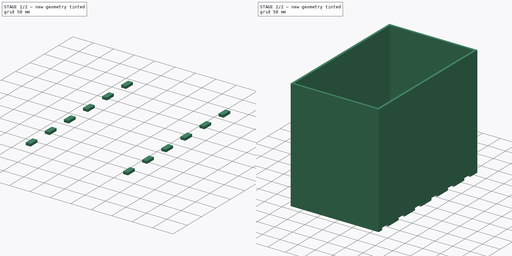
[diagram: build sequence overview — one tinted view per stage of 2, left to right]
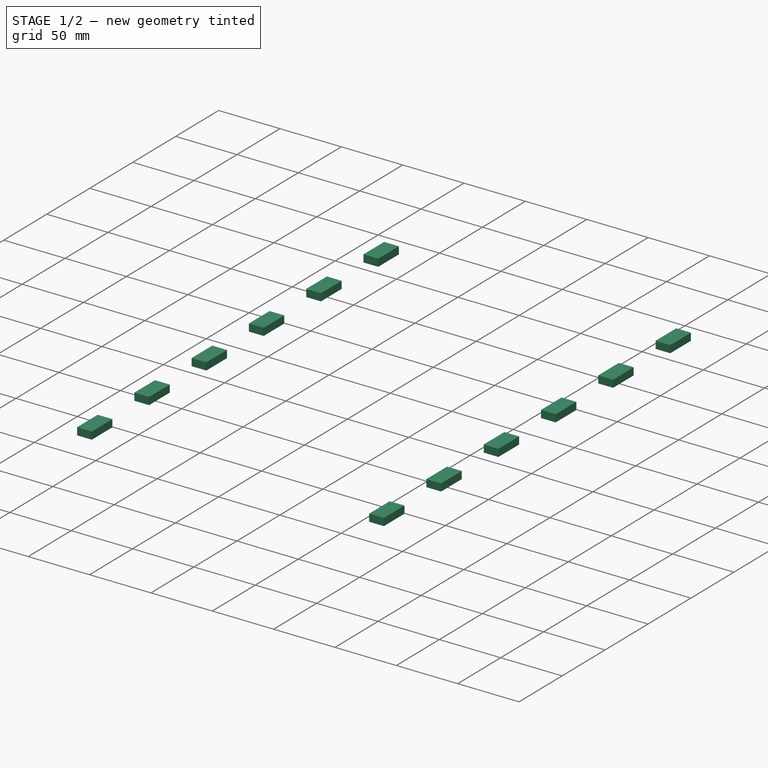
[diagram: stage 1 of 2 — iso view after this stage's code; geometry added in this stage tinted green]
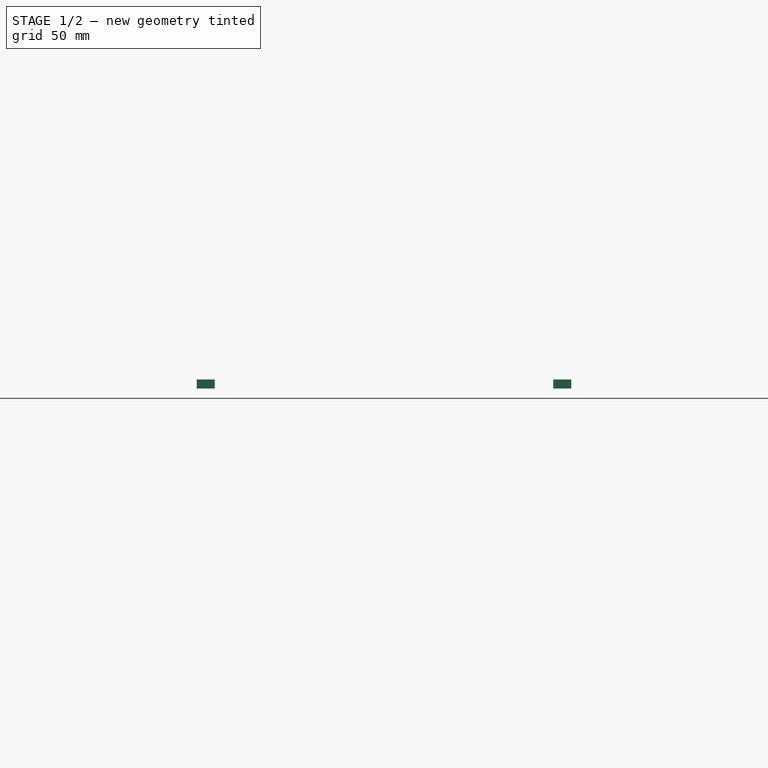
[diagram: stage 1 of 2 — front view after this stage's code; geometry added in this stage tinted green]
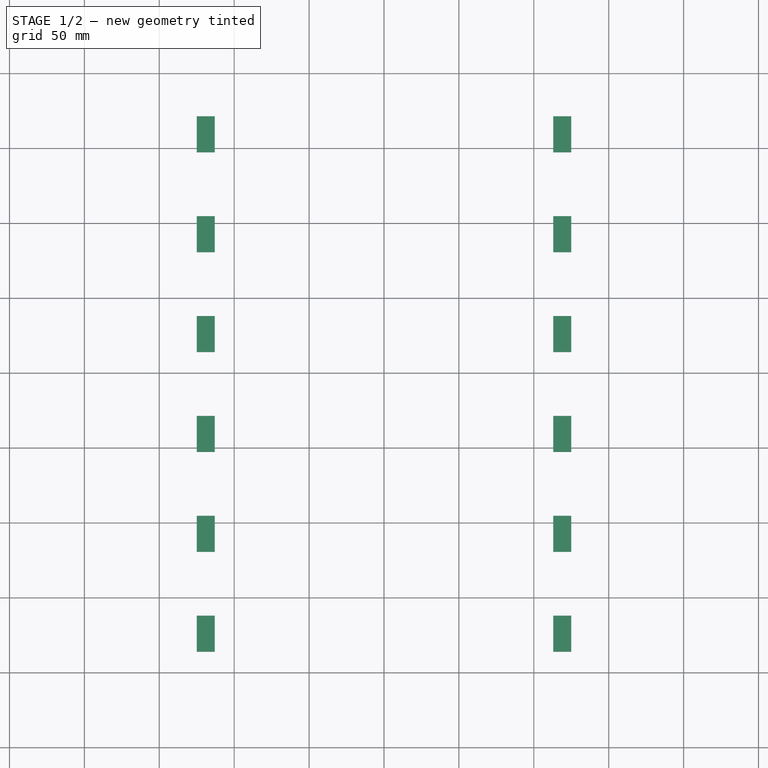
[diagram: stage 1 of 2 — top view after this stage's code; geometry added in this stage tinted green]
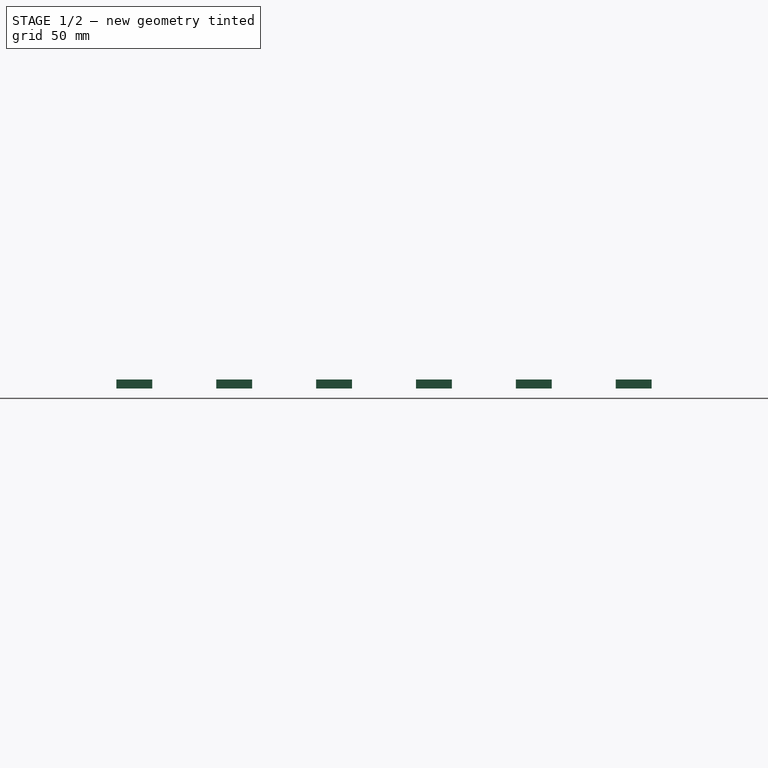
[diagram: stage 1 of 2 — right view after this stage's code; geometry added in this stage tinted green]
FCSTD DOCUMENT  (FreeCAD 0.16RUnknown)
Label: akpCupboard
License: All rights reserved
LicenseURL: http://en.wikipedia.org/wiki/All_rights_reserved
objects: Sketcher::SketchObject×3, PartDesign::Pad×2, Spreadsheet::Sheet×1, Part::FeaturePython×1, Part::Cut×1
note: 9 computed .brp shape members not serialized (recipe doc carries the construction recipe); baked Part::Feature solids carry a one-line shape summary decoded from their .brp

FEATURE [Sketcher::SketchObject] Sketch003
  Placement = pos=(0,0,0) rot=(1,0,0;3.14159rad)
  Support = -> Pad [Face9]
  expr: Constraints[10] = Spreadsheet.he - 2 * Spreadsheet.th
  expr: Constraints[9] = Spreadsheet.wi - 2 * Spreadsheet.th
  sketch-geometry (4):
    g0: LineSegment StartX=-119 StartY=194 StartZ=0 EndX=119 EndY=194 EndZ=0
    g1: LineSegment StartX=119 StartY=194 StartZ=0 EndX=119 EndY=-194 EndZ=0
    g2: LineSegment StartX=119 StartY=-194 StartZ=0 EndX=-119 EndY=-194 EndZ=0
    g3: LineSegment StartX=-119 StartY=-194 StartZ=0 EndX=-119 EndY=194 EndZ=0
  constraints (11):
    c: Coincident(g0,g1)
    c: Coincident(g1,g2)
    c: Coincident(g2,g3)
    c: Coincident(g3,g0)
    c: Horizontal(g0)
    c: Horizontal(g2)
    c: Vertical(g3)
    c: Symmetric(g0,g0,g-2)
    c: Symmetric(g1,g0,g-1)
    c: DistanceX(g0,g0) = 238
    c: DistanceY(g1,g1) = 388
FEATURE [Spreadsheet::Sheet] Spreadsheet
  cells = A1=Width; B1(wi)==1 * 250; A2=Height; B2(he)==1 * 400; A3=Thickness; B3(th)==1 * 6
FEATURE [Sketcher::SketchObject] Sketch004
  Placement = pos=(0,0,0) rot=(1,0,0;3.14159rad)
  expr: Constraints[13] = (Spreadsheet.wi - 2 * Spreadsheet.th) / 2
  expr: Constraints[11] = Spreadsheet.th * 4
  expr: Constraints[10] = Spreadsheet.th * 2
  sketch-geometry (5):
    g0: LineSegment StartX=113 StartY=186.001 StartZ=0 EndX=125 EndY=186.001 EndZ=0
    g1: LineSegment StartX=125 StartY=186.001 StartZ=0 EndX=125 EndY=162.001 EndZ=0
    g2: LineSegment StartX=125 StartY=162.001 StartZ=0 EndX=113 EndY=162.001 EndZ=0
    g3: LineSegment StartX=113 StartY=162.001 StartZ=0 EndX=113 EndY=186.001 EndZ=0
    g4: LineSegment [constr] StartX=119 StartY=186.001 StartZ=0 EndX=119 EndY=110.701 EndZ=0
  constraints (14):
    c: Coincident(g0,g1)
    c: Coincident(g1,g2)
    c: Coincident(g2,g3)
    c: Coincident(g3,g0)
    c: Horizontal(g0)
    c: Horizontal(g2)
    c: Vertical(g1)
    c: Vertical(g3)
    c: Vertical(g4)
    c: Symmetric(g0,g0,g4)
    c: DistanceX(g0,g0) = 12
    c: DistanceY(g1,g1) = 24
    c: Perpendicular(g4,g0) = 1.5708
    c: DistanceX(g-1,g4) = 119
FEATURE [PartDesign::Pad] Pad001
  Length = 6
  Length2 = 100
  Placement = pos=(0,0,0) rot=(1,0,0;3.14159rad)
  Reversed = true
  Sketch = -> Sketch004
  Type = 0
  expr: Length = Spreadsheet.th
FEATURE [Part::FeaturePython] Array  # Draft array (typed FeaturePython)
  Angle = 360
  ArrayType = 0
  Axis = (0,0,1)
  Base = -> Pad001
  Center = (0,0,0)
  Fuse = false
  IntervalAxis = (0,0,0)
  IntervalX = (-238,0,0)
  IntervalY = (0,66.6667,0)
  IntervalZ = (0,0,0)
  NumberPolar = 1
  NumberX = 2
  NumberY = 6
  NumberZ = 1
  expr: NumberY = Spreadsheet.he / Spreadsheet.th / 10 - 1
  expr: IntervalY.y = Spreadsheet.he / Spreadsheet.th
  expr: IntervalX.x = -Spreadsheet.wi + 2 * Spreadsheet.th
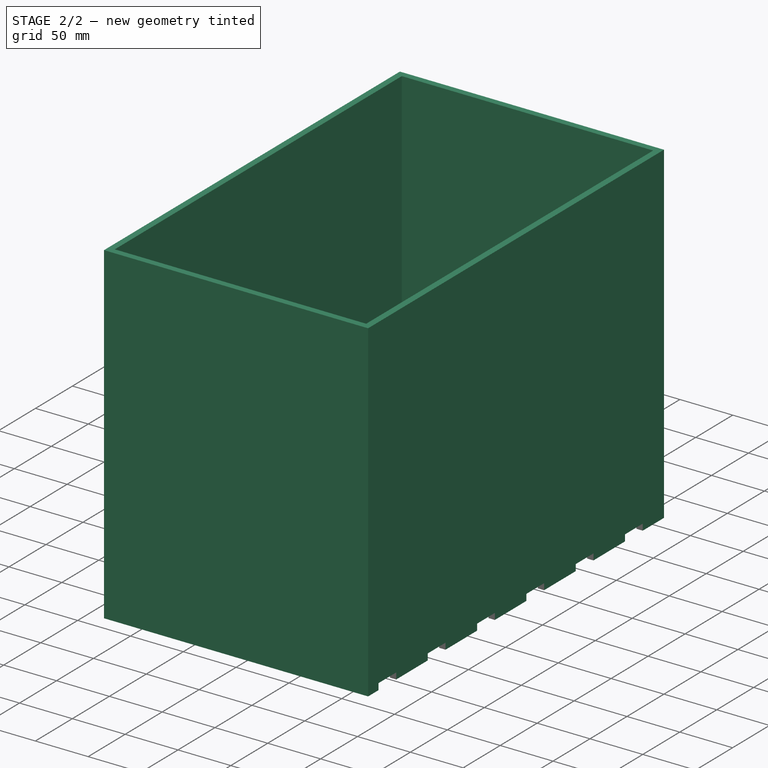
[diagram: stage 2 of 2 — iso view after this stage's code; geometry added in this stage tinted green]
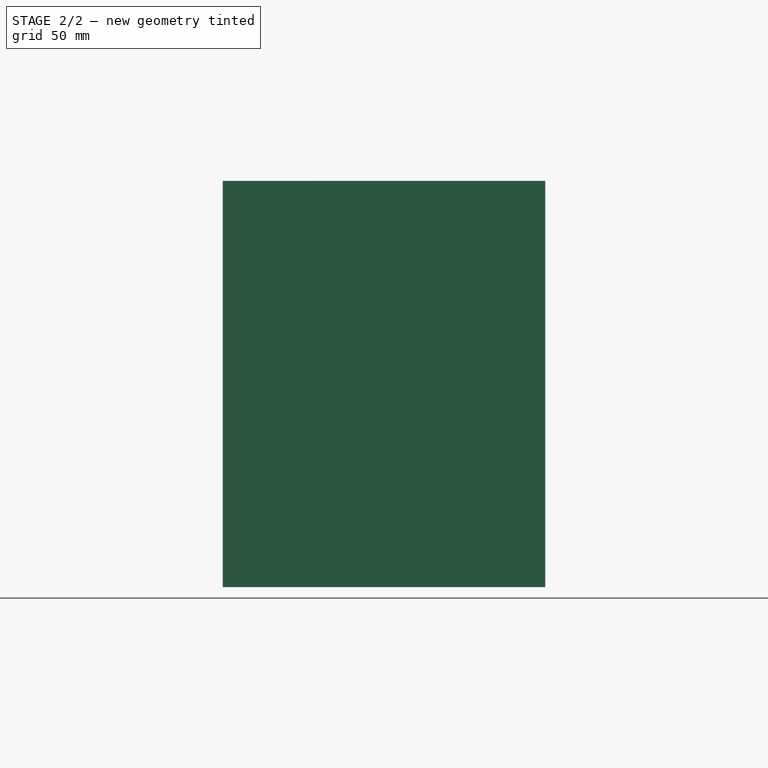
[diagram: stage 2 of 2 — front view after this stage's code; geometry added in this stage tinted green]
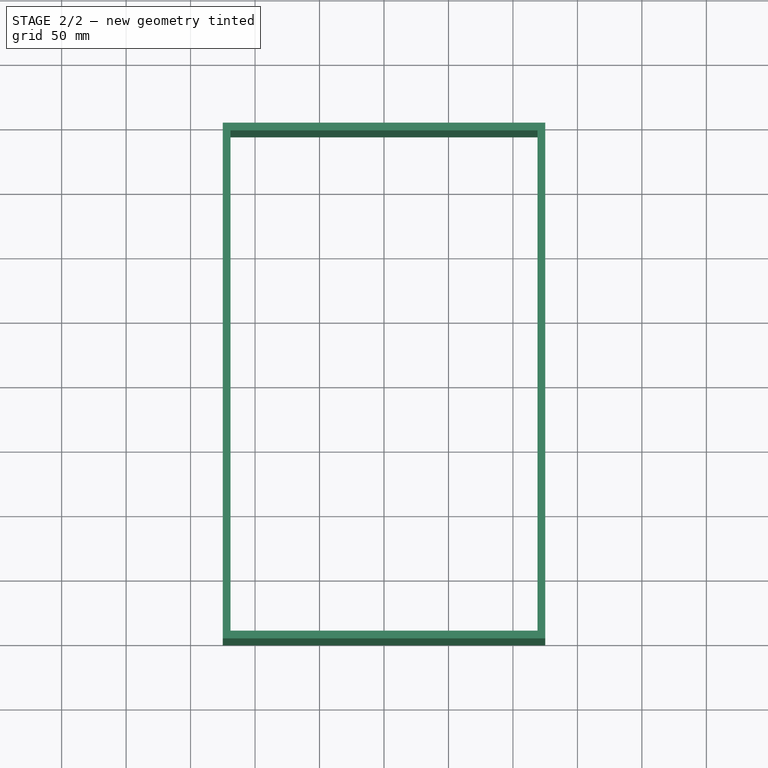
[diagram: stage 2 of 2 — top view after this stage's code; geometry added in this stage tinted green]
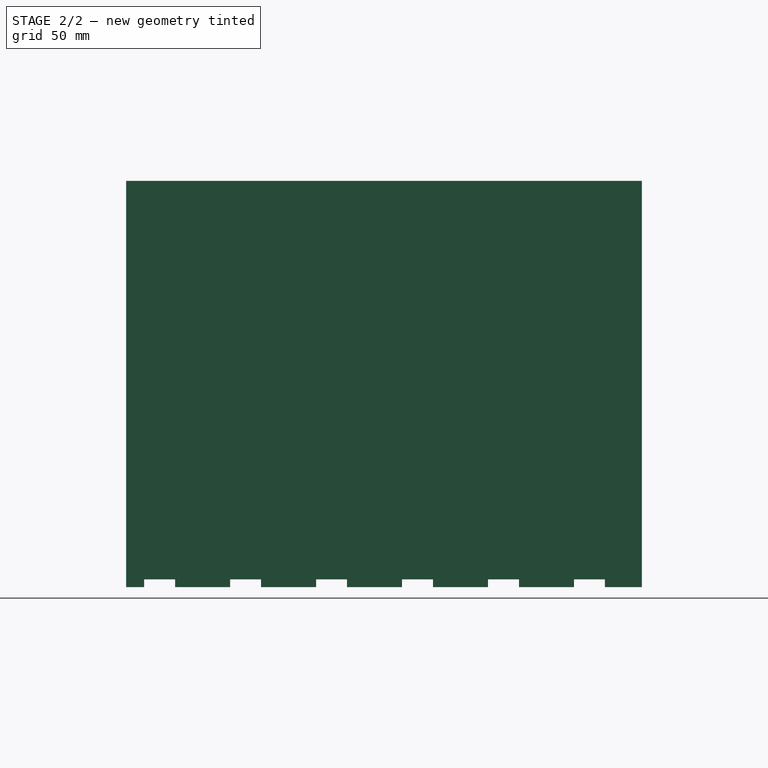
[diagram: stage 2 of 2 — right view after this stage's code; geometry added in this stage tinted green]
FEATURE [Sketcher::SketchObject] Sketch  label="Inner"
  expr: Constraints[22] = Spreadsheet.th
  expr: Constraints[20] = Spreadsheet.th
  sketch-geometry (8):
    g0: LineSegment StartX=-125 StartY=200 StartZ=0 EndX=125 EndY=200 EndZ=0
    g1: LineSegment StartX=125 StartY=200 StartZ=0 EndX=125 EndY=-200 EndZ=0
    g2: LineSegment StartX=125 StartY=-200 StartZ=0 EndX=-125 EndY=-200 EndZ=0
    g3: LineSegment StartX=-125 StartY=-200 StartZ=0 EndX=-125 EndY=200 EndZ=0
    g4: LineSegment StartX=-119 StartY=194 StartZ=0 EndX=119 EndY=194 EndZ=0
    g5: LineSegment StartX=119 StartY=194 StartZ=0 EndX=119 EndY=-194 EndZ=0
    g6: LineSegment StartX=119 StartY=-194 StartZ=0 EndX=-119 EndY=-194 EndZ=0
    g7: LineSegment StartX=-119 StartY=-194 StartZ=0 EndX=-119 EndY=194 EndZ=0
  constraints (24):
    c: Coincident(g0,g1)
    c: Coincident(g1,g2)
    c: Coincident(g2,g3)
    c: Coincident(g3,g0)
    c: Horizontal(g0)
    c: Horizontal(g2)
    c: Vertical(g1)
    c: Vertical(g3)
    c: Symmetric(g0,g2,g-1)
    c: Symmetric(g1,g2,g-2)
    c: DistanceX(g2,g2) = 250  'A4width'
    c: DistanceY(g3,g3) = 400
    c: Coincident(g4,g5)
    c: Coincident(g5,g6)
    c: Coincident(g6,g7)
    c: Coincident(g7,g4)
    c: Horizontal(g4)
    c: Horizontal(g6)
    c: Vertical(g5)
    c: Vertical(g7)
    c: Distance(g0,g4) = 6
    c: Symmetric(g4,g5,g-1)
    c: Distance(g1,g5) = 6
    c: Symmetric(g6,g5,g-2)
FEATURE [PartDesign::Pad] Pad  label="Sides"
  Length = 315
  Length2 = 100
  Sketch = -> Sketch
  Type = 0
FEATURE [Part::Cut] Cut
  Base = -> Pad
  Tool = -> Array
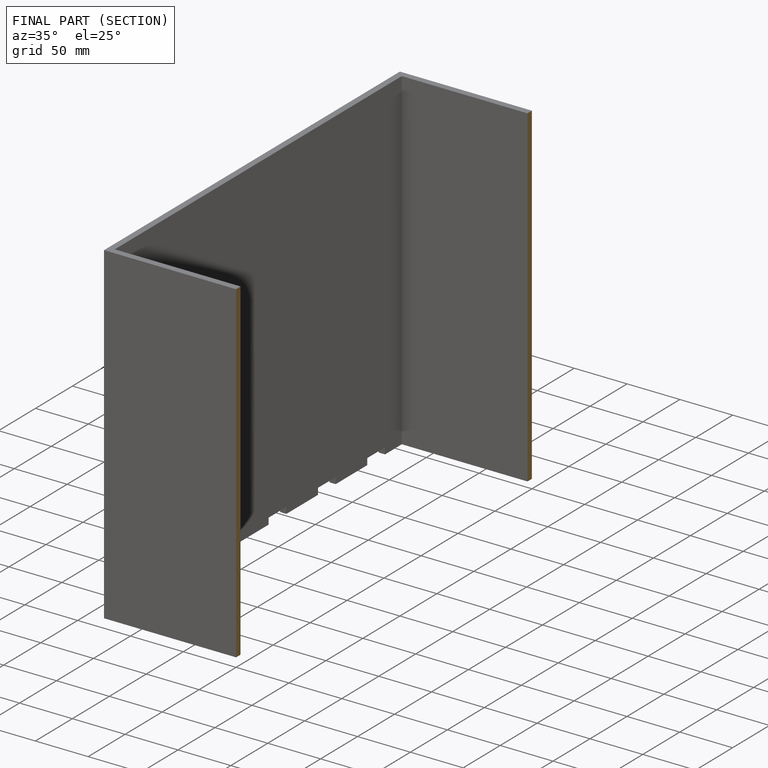
[diagram: finished part — half-section view (interior)]
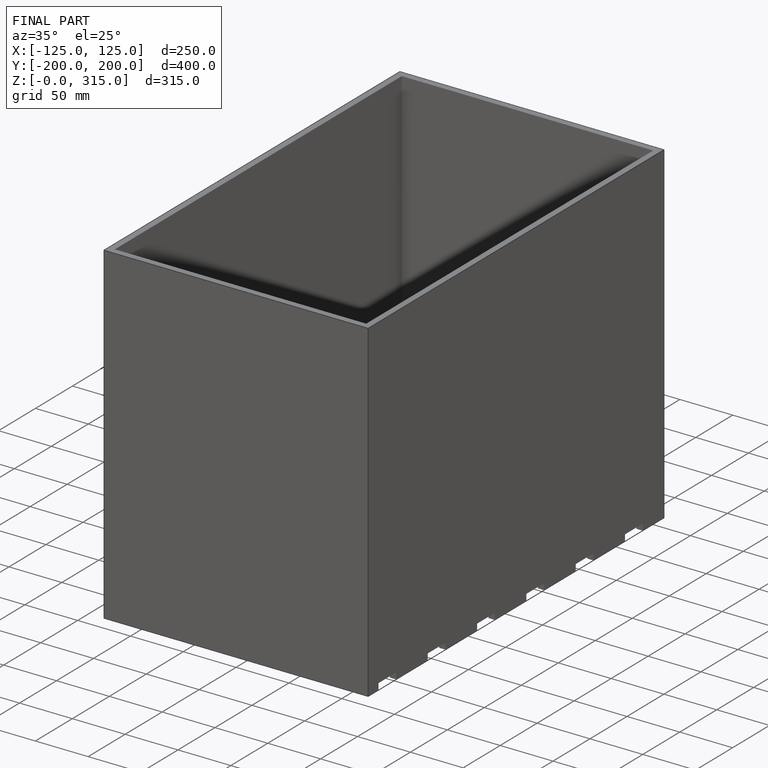
[diagram: finished part — iso view with bounding-box wireframe]
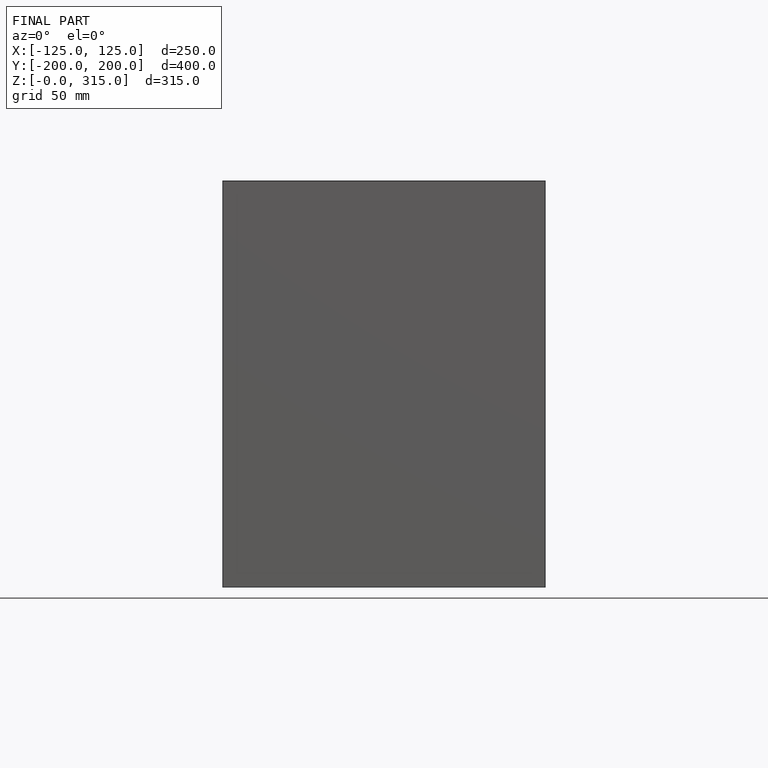
[diagram: finished part — front view with bounding-box wireframe]
